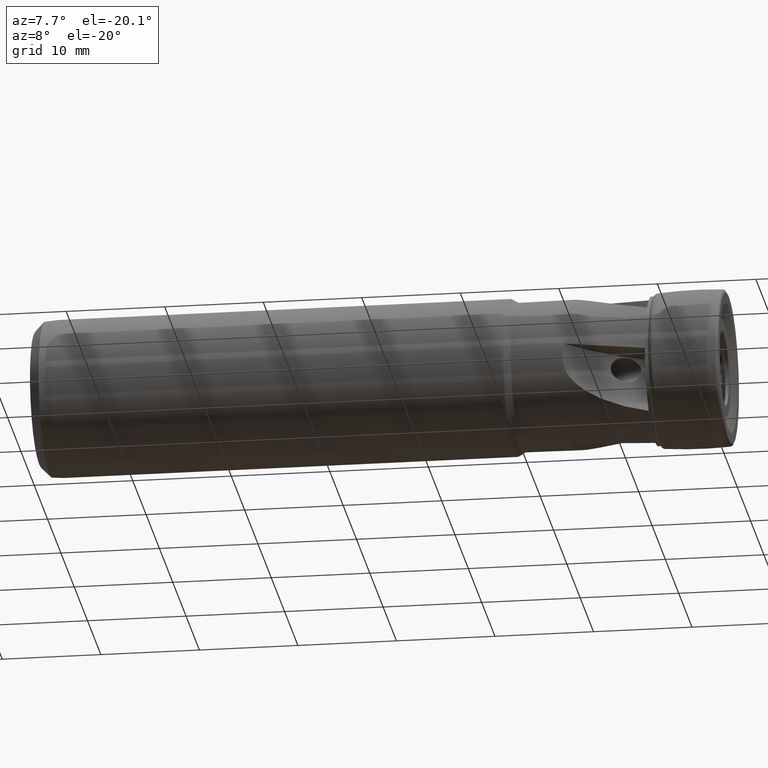
[diagram: clean part render]
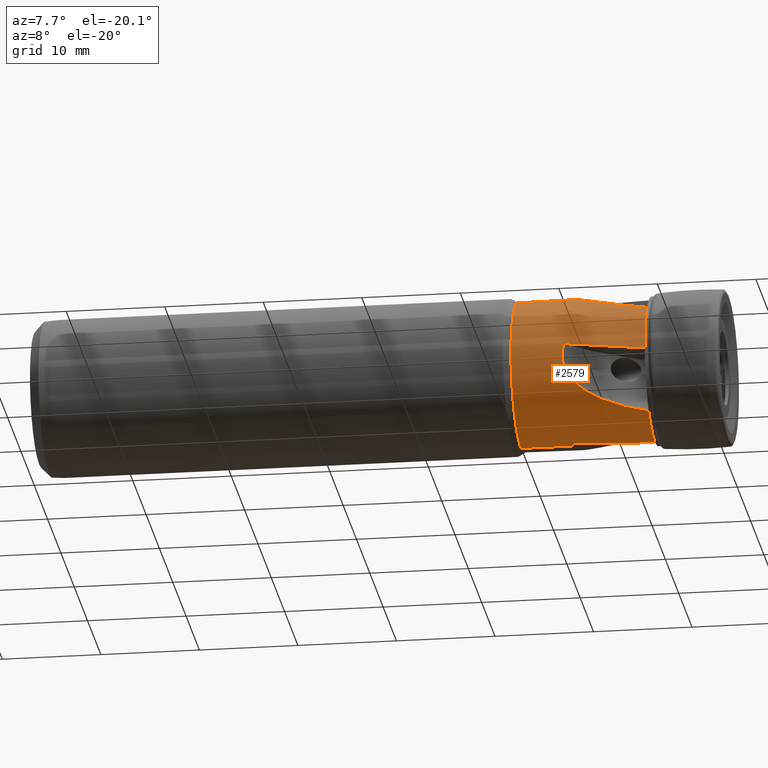
[diagram: same view with one face highlighted and labeled with its STEP entity id]
A machine part, auxiliary view. The second image highlights one B-rep face of the part: STEP entity #2579.
In plain terms, the highlighted cylindrical surface (partial cylindrical patch) has radius 7.5775 mm, axis along (1, -0, -0).
Its self-contained STEP definition (entity closure, byte-faithful):
#207 = EDGE_CURVE ( 'NONE', #1450, #2859, #1840, .T. ) ;
#208 = EDGE_CURVE ( 'NONE', #1452, #1450, #1598, .T. ) ;
#209 = EDGE_CURVE ( 'NONE', #1422, #1452, #1544, .T. ) ;
#210 = EDGE_CURVE ( 'NONE', #1420, #1422, #426, .T. ) ;
#211 = EDGE_CURVE ( 'NONE', #1423, #1420, #1713, .T. ) ;
#212 = EDGE_CURVE ( 'NONE', #1424, #1423, #1546, .T. ) ;
#213 = EDGE_CURVE ( 'NONE', #1449, #1424, #1548, .T. ) ;
#223 = EDGE_CURVE ( 'NONE', #1448, #1449, #2278, .T. ) ;
#232 = EDGE_CURVE ( 'NONE', #1445, #1453, #499, .T. ) ;
#233 = EDGE_CURVE ( 'NONE', #1448, #1445, #1716, .T. ) ;
#234 = EDGE_CURVE ( 'NONE', #3328, #1453, #1572, .T. ) ;
#235 = EDGE_CURVE ( 'NONE', #1421, #3328, #422, .T. ) ;
#236 = EDGE_CURVE ( 'NONE', #1421, #2859, #522, .T. ) ;
#422 =( BOUNDED_CURVE ( )  B_SPLINE_CURVE ( 3, ( #506, #517, #518, #520 ),
 .UNSPECIFIED., .F., .T. ) 
 B_SPLINE_CURVE_WITH_KNOTS ( ( 4, 4 ),
 ( 1.570796326794896800, 1.656319069123720200 ),
 .UNSPECIFIED. ) 
 CURVE ( )  GEOMETRIC_REPRESENTATION_ITEM ( )  RATIONAL_B_SPLINE_CURVE ( ( 1.000000000000000000, 0.9993905812491564700, 0.9993905812491564700, 1.000000000000000000 ) ) 
 REPRESENTATION_ITEM ( '' )  );
#426 =( BOUNDED_CURVE ( )  B_SPLINE_CURVE ( 3, ( #2169, #2199, #2200, #2201 ),
 .UNSPECIFIED., .F., .T. ) 
 B_SPLINE_CURVE_WITH_KNOTS ( ( 4, 4 ),
 ( 1.541824511685422300, 1.656319069123720200 ),
 .UNSPECIFIED. ) 
 CURVE ( )  GEOMETRIC_REPRESENTATION_ITEM ( )  RATIONAL_B_SPLINE_CURVE ( ( 1.000000000000000000, 0.9989078813375386100, 0.9989078813375386100, 1.000000000000000000 ) ) 
 REPRESENTATION_ITEM ( '' )  );
#431 = ORIENTED_EDGE ( 'NONE', *, *, #236, .T. ) ;
#499 = LINE ( 'NONE', #501, #1753 ) ;
#501 = CARTESIAN_POINT ( 'NONE',  ( 0.0000000000000000000, 0.0000000000000000000, -7.577499999999998800 ) ) ;
#506 = CARTESIAN_POINT ( 'NONE',  ( -9.088433621831505600, 0.0000000000000000000, -7.577499999999998800 ) ) ;
#507 = DIRECTION ( 'NONE',  ( 1.000000000000000000, -0.0000000000000000000, -0.0000000000000000000 ) ) ;
#508 = CARTESIAN_POINT ( 'NONE',  ( -15.24669052682192600, -0.6472588825685092800, -7.549805440468991200 ) ) ;
#509 = CARTESIAN_POINT ( 'NONE',  ( -15.29325299752517800, -0.4323239280214041800, -7.568232214457454500 ) ) ;
#510 = CARTESIAN_POINT ( 'NONE',  ( -20.59500345304526500, 0.0000000000000000000, 0.0000000000000000000 ) ) ;
#511 = DIRECTION ( 'NONE',  ( 1.000000000000000000, -0.0000000000000000000, -0.0000000000000000000 ) ) ;
#512 = DIRECTION ( 'NONE',  ( 0.0000000000000000000, 0.0000000000000000000, -1.000000000000000000 ) ) ;
#513 = CARTESIAN_POINT ( 'NONE',  ( -15.32790235060161900, -0.2165696146702172100, -7.577499999999998800 ) ) ;
#514 = CARTESIAN_POINT ( 'NONE',  ( -15.35066473433330700, 2.249131895844708300E-016, -7.577499999999998800 ) ) ;
#517 = CARTESIAN_POINT ( 'NONE',  ( -11.14431701290964000, -0.2160820516146453000, -7.577500000000000600 ) ) ;
#518 = CARTESIAN_POINT ( 'NONE',  ( -13.19832106315566000, -0.4319665765483273700, -7.568262850864465800 ) ) ;
#520 = CARTESIAN_POINT ( 'NONE',  ( -15.24669052682192600, -0.6472588825685092800, -7.549805440468991200 ) ) ;
#522 = LINE ( 'NONE', #525, #1697 ) ;
#525 = CARTESIAN_POINT ( 'NONE',  ( 0.0000000000000000000, 0.0000000000000000000, -7.577499999999998800 ) ) ;
#527 = DIRECTION ( 'NONE',  ( 1.000000000000000000, -0.0000000000000000000, -0.0000000000000000000 ) ) ;
#567 = CARTESIAN_POINT ( 'NONE',  ( -6.999999999999998200, -7.574320074235645400, -0.2195032187256865700 ) ) ;
#638 = CARTESIAN_POINT ( 'NONE',  ( -20.59500345304526500, 0.0000000000000000000, 7.577499999999997900 ) ) ;
#656 = CARTESIAN_POINT ( 'NONE',  ( -9.088433621831505600, 0.0000000000000000000, -7.577499999999998800 ) ) ;
#658 = CARTESIAN_POINT ( 'NONE',  ( -15.24669052682192600, -7.549805440468991200, 0.6472588825685357000 ) ) ;
#660 = CARTESIAN_POINT ( 'NONE',  ( -6.999999999999998200, -5.930818102993552700, 4.716344228234826900 ) ) ;
#662 = CARTESIAN_POINT ( 'NONE',  ( -15.33333440140710600, -1.354651038379739900, 7.455429351433569000 ) ) ;
#676 = CARTESIAN_POINT ( 'NONE',  ( -20.59500345304526500, 9.538467756858941400E-016, -7.577499999999997900 ) ) ;
#679 = CARTESIAN_POINT ( 'NONE',  ( -15.35066473433331200, 9.296650137347176800E-016, 7.577499999999998800 ) ) ;
#680 = CARTESIAN_POINT ( 'NONE',  ( -6.999999999999998200, -4.716344228234801200, -5.930818102993574000 ) ) ;
#682 = CARTESIAN_POINT ( 'NONE',  ( -15.33333440140704700, -7.455429351433513900, -1.354651038379772500 ) ) ;
#683 = CARTESIAN_POINT ( 'NONE',  ( -15.35066473433330700, 2.249131895844708300E-016, -7.577499999999998800 ) ) ;
#1420 = VERTEX_POINT ( 'NONE', #567 ) ;
#1421 = VERTEX_POINT ( 'NONE', #656 ) ;
#1422 = VERTEX_POINT ( 'NONE', #658 ) ;
#1423 = VERTEX_POINT ( 'NONE', #660 ) ;
#1424 = VERTEX_POINT ( 'NONE', #662 ) ;
#1445 = VERTEX_POINT ( 'NONE', #676 ) ;
#1448 = VERTEX_POINT ( 'NONE', #638 ) ;
#1449 = VERTEX_POINT ( 'NONE', #679 ) ;
#1450 = VERTEX_POINT ( 'NONE', #680 ) ;
#1452 = VERTEX_POINT ( 'NONE', #682 ) ;
#1453 = VERTEX_POINT ( 'NONE', #683 ) ;
#1456 = EDGE_LOOP ( 'NONE', ( #3710, #2778, #2758, #3394, #2644, #431, #3395, #3216, #3707, #3228, #3230, #2762, #3214 ) ) ;
#1544 = B_SPLINE_CURVE_WITH_KNOTS ( 'NONE', 3,
 ( #2193, #2194, #2195, #2196, #2197, #2198 ),
 .UNSPECIFIED., .F., .F.,
 ( 4, 2, 4 ),
 ( 4.059855802725617500E-017, 0.001004227971323009300, 0.002008455942645977900 ),
 .UNSPECIFIED. ) ;
#1546 = B_SPLINE_CURVE_WITH_KNOTS ( 'NONE', 3,
 ( #2208, #2203, #2204, #2209, #2210, #2211, #2212, #2213, #2214, #2215, #2216, #2217, #2218, #2219, #2220, #2221 ),
 .UNSPECIFIED., .F., .F.,
 ( 4, 2, 2, 2, 2, 2, 2, 4 ),
 ( 0.0008322576094183214500, 0.001487213761063959100, 0.002142169912709596900, 0.003452082216000873900, 0.004761994519292151200, 0.006071906822583428600, 0.008691731429165985200, 0.01131155603574854300 ),
 .UNSPECIFIED. ) ;
#1548 = B_SPLINE_CURVE_WITH_KNOTS ( 'NONE', 3,
 ( #2223, #2202, #2224, #2225, #2226, #2227 ),
 .UNSPECIFIED., .F., .F.,
 ( 4, 2, 4 ),
 ( 0.0006530204088868937800, 0.001330738175766359500, 0.002008455942645825200 ),
 .UNSPECIFIED. ) ;
#1572 = B_SPLINE_CURVE_WITH_KNOTS ( 'NONE', 3,
 ( #508, #509, #513, #514 ),
 .UNSPECIFIED., .F., .F.,
 ( 4, 4 ),
 ( 3.995060656255393500E-017, 0.0006530204088868194000 ),
 .UNSPECIFIED. ) ;
#1598 = B_SPLINE_CURVE_WITH_KNOTS ( 'NONE', 3,
 ( #2178, #2173, #2174, #2179, #2180, #2181, #2182, #2183, #2184, #2185, #2186, #2187, #2188, #2189, #2190, #2191 ),
 .UNSPECIFIED., .F., .F.,
 ( 4, 2, 2, 2, 2, 2, 2, 4 ),
 ( 0.0008322576094182950000, 0.001487213761063930400, 0.002142169912709566100, 0.003452082216000836600, 0.004761994519292107000, 0.006071906822583376600, 0.008691731429165919200, 0.01131155603574846000 ),
 .UNSPECIFIED. ) ;
#1659 = VECTOR ( 'NONE', #2282, 1000.000000000000000 ) ;
#1697 = VECTOR ( 'NONE', #527, 1000.000000000000000 ) ;
#1713 = CIRCLE ( 'NONE', #1822, 7.577500000000000600 ) ;
#1716 = CIRCLE ( 'NONE', #1824, 7.577499999999997900 ) ;
#1724 = AXIS2_PLACEMENT_3D ( 'NONE', #2175, #2176, #2177 ) ;
#1736 = AXIS2_PLACEMENT_3D ( 'NONE', #3590, #3587, #3592 ) ;
#1753 = VECTOR ( 'NONE', #507, 1000.000000000000000 ) ;
#1822 = AXIS2_PLACEMENT_3D ( 'NONE', #2205, #2206, #2207 ) ;
#1824 = AXIS2_PLACEMENT_3D ( 'NONE', #510, #511, #512 ) ;
#1840 = CIRCLE ( 'NONE', #1724, 7.577500000000000600 ) ;
#1887 = CARTESIAN_POINT ( 'NONE',  ( -7.000000000000000900, 0.0000000000000000000, -7.577500000000000600 ) ) ;
#2135 = CARTESIAN_POINT ( 'NONE',  ( -15.24669052682192600, -0.6472588825685092800, -7.549805440468991200 ) ) ;
#2169 = CARTESIAN_POINT ( 'NONE',  ( -6.999999999999998200, -7.574320074235645400, -0.2195032187256865700 ) ) ;
#2173 = CARTESIAN_POINT ( 'NONE',  ( -15.30418429665280500, -7.416224909019989700, -1.570415794317270100 ) ) ;
#2174 = CARTESIAN_POINT ( 'NONE',  ( -15.24740651854873600, -7.369167136213939700, -1.776522735733879500 ) ) ;
#2175 = CARTESIAN_POINT ( 'NONE',  ( -7.000000000000000900, 0.0000000000000000000, 0.0000000000000000000 ) ) ;
#2176 = DIRECTION ( 'NONE',  ( 1.000000000000000000, -0.0000000000000000000, -0.0000000000000000000 ) ) ;
#2177 = DIRECTION ( 'NONE',  ( 0.0000000000000000000, 0.0000000000000000000, -1.000000000000000000 ) ) ;
#2178 = CARTESIAN_POINT ( 'NONE',  ( -15.33333440140704700, -7.455429351433513900, -1.354651038379772500 ) ) ;
#2179 = CARTESIAN_POINT ( 'NONE',  ( -15.08873138883053700, -7.262158880708143200, -2.172948619591998500 ) ) ;
#2180 = CARTESIAN_POINT ( 'NONE',  ( -14.98759963922857900, -7.202878269635745800, -2.360366152332080700 ) ) ;
#2181 = CARTESIAN_POINT ( 'NONE',  ( -14.64241031893376100, -7.017076162215863300, -2.883792354647799700 ) ) ;
#2182 = CARTESIAN_POINT ( 'NONE',  ( -14.35087963573838200, -6.879430120447591600, -3.190938933976179600 ) ) ;
#2183 = CARTESIAN_POINT ( 'NONE',  ( -13.72105148651536800, -6.605393670156154000, -3.725241539114962900 ) ) ;
#2184 = CARTESIAN_POINT ( 'NONE',  ( -13.37940297012835200, -6.467289669227922000, -3.956559708159000300 ) ) ;
#2185 = CARTESIAN_POINT ( 'NONE',  ( -12.65864975864529100, -6.194300913551593600, -4.371594283817222100 ) ) ;
#2186 = CARTESIAN_POINT ( 'NONE',  ( -12.28415587280566100, -6.061254586552728100, -4.552101152869305200 ) ) ;
#2187 = CARTESIAN_POINT ( 'NONE',  ( -11.13865844798483500, -5.679237740916682300, -5.033137014625148200 ) ) ;
#2188 = CARTESIAN_POINT ( 'NONE',  ( -10.34120703456994100, -5.445501580167202400, -5.276962829780944600 ) ) ;
#2189 = CARTESIAN_POINT ( 'NONE',  ( -8.696155689995743300, -5.033486541154712100, -5.671317078642983000 ) ) ;
#2190 = CARTESIAN_POINT ( 'NONE',  ( -7.853674738177675300, -4.856785448051440700, -5.819135511319730700 ) ) ;
#2191 = CARTESIAN_POINT ( 'NONE',  ( -6.999999999999998200, -4.716344228234801200, -5.930818102993574000 ) ) ;
#2193 = CARTESIAN_POINT ( 'NONE',  ( -15.24669052682192600, -7.549805440468991200, 0.6472588825685357000 ) ) ;
#2194 = CARTESIAN_POINT ( 'NONE',  ( -15.31829523451337100, -7.578142505602721200, 0.3167275692530657200 ) ) ;
#2195 = CARTESIAN_POINT ( 'NONE',  ( -15.36188781124496900, -7.584875049033675200, -0.01572916052514809100 ) ) ;
#2196 = CARTESIAN_POINT ( 'NONE',  ( -15.39206875165628600, -7.553936982167289900, -0.6845531282447919800 ) ) ;
#2197 = CARTESIAN_POINT ( 'NONE',  ( -15.37808465312702600, -7.515614681172043500, -1.023416306226983200 ) ) ;
#2198 = CARTESIAN_POINT ( 'NONE',  ( -15.33333440140704700, -7.455429351433513900, -1.354651038379772500 ) ) ;
#2199 = CARTESIAN_POINT ( 'NONE',  ( -9.751847380404086600, -7.582701961205290600, 0.06972759575951662000 ) ) ;
#2200 = CARTESIAN_POINT ( 'NONE',  ( -12.50374962647828700, -7.574521482563032900, 0.3589641768590058300 ) ) ;
#2201 = CARTESIAN_POINT ( 'NONE',  ( -15.24669052682192600, -7.549805440468991200, 0.6472588825685357000 ) ) ;
#2202 = CARTESIAN_POINT ( 'NONE',  ( -15.37428799581420500, -0.2247603193266936900, 7.577499999999998800 ) ) ;
#2203 = CARTESIAN_POINT ( 'NONE',  ( -15.30418429665282600, -1.570415794317215700, 7.416224909020004800 ) ) ;
#2204 = CARTESIAN_POINT ( 'NONE',  ( -15.24740651854875400, -1.776522735733826000, 7.369167136213953000 ) ) ;
#2205 = CARTESIAN_POINT ( 'NONE',  ( -7.000000000000000900, 0.0000000000000000000, 0.0000000000000000000 ) ) ;
#2206 = DIRECTION ( 'NONE',  ( 1.000000000000000000, -0.0000000000000000000, -0.0000000000000000000 ) ) ;
#2207 = DIRECTION ( 'NONE',  ( 0.0000000000000000000, 0.0000000000000000000, -1.000000000000000000 ) ) ;
#2208 = CARTESIAN_POINT ( 'NONE',  ( -15.33333440140710600, -1.354651038379739900, 7.455429351433569000 ) ) ;
#2209 = CARTESIAN_POINT ( 'NONE',  ( -15.08873138883056200, -2.172948619591949600, 7.262158880708160100 ) ) ;
#2210 = CARTESIAN_POINT ( 'NONE',  ( -14.98759963922859800, -2.360366152332033200, 7.202878269635761800 ) ) ;
#2211 = CARTESIAN_POINT ( 'NONE',  ( -14.64241031893378200, -2.883792354647757500, 7.017076162215881000 ) ) ;
#2212 = CARTESIAN_POINT ( 'NONE',  ( -14.35087963573839400, -3.190938933976136900, 6.879430120447611200 ) ) ;
#2213 = CARTESIAN_POINT ( 'NONE',  ( -13.72105148651538700, -3.725241539114925600, 6.605393670156177100 ) ) ;
#2214 = CARTESIAN_POINT ( 'NONE',  ( -13.37940297012836800, -3.956559708158967400, 6.467289669227942500 ) ) ;
#2215 = CARTESIAN_POINT ( 'NONE',  ( -12.65864975864529800, -4.371594283817190200, 6.194300913551607800 ) ) ;
#2216 = CARTESIAN_POINT ( 'NONE',  ( -12.28415587280567700, -4.552101152869278500, 6.061254586552746700 ) ) ;
#2217 = CARTESIAN_POINT ( 'NONE',  ( -11.13865844798485000, -5.033137014625125100, 5.679237740916702700 ) ) ;
#2218 = CARTESIAN_POINT ( 'NONE',  ( -10.34120703456995600, -5.276962829780922300, 5.445501580167224600 ) ) ;
#2219 = CARTESIAN_POINT ( 'NONE',  ( -8.696155689995748600, -5.671317078642962500, 5.033486541154731600 ) ) ;
#2220 = CARTESIAN_POINT ( 'NONE',  ( -7.853674738177677000, -5.819135511319716500, 4.856785448051457600 ) ) ;
#2221 = CARTESIAN_POINT ( 'NONE',  ( -6.999999999999998200, -5.930818102993552700, 4.716344228234826900 ) ) ;
#2223 = CARTESIAN_POINT ( 'NONE',  ( -15.35066473433331200, 9.296650137347176800E-016, 7.577499999999998800 ) ) ;
#2224 = CARTESIAN_POINT ( 'NONE',  ( -15.38511802449076200, -0.4503980382160495700, 7.567522191860283500 ) ) ;
#2225 = CARTESIAN_POINT ( 'NONE',  ( -15.37984515053955000, -0.9035261771321729800, 7.526877902846814900 ) ) ;
#2226 = CARTESIAN_POINT ( 'NONE',  ( -15.36353475583754300, -1.131112489964476700, 7.496046291445235700 ) ) ;
#2227 = CARTESIAN_POINT ( 'NONE',  ( -15.33333440140710600, -1.354651038379739900, 7.455429351433569000 ) ) ;
#2266 = CARTESIAN_POINT ( 'NONE',  ( 0.0000000000000000000, 9.279761120539067100E-016, 7.577499999999998800 ) ) ;
#2278 = LINE ( 'NONE', #2266, #1659 ) ;
#2282 = DIRECTION ( 'NONE',  ( 1.000000000000000000, -0.0000000000000000000, -0.0000000000000000000 ) ) ;
#2579 = ADVANCED_FACE ( 'NONE', ( #3589 ), #3588, .T. ) ;
#2644 = ORIENTED_EDGE ( 'NONE', *, *, #235, .F. ) ;
#2758 = ORIENTED_EDGE ( 'NONE', *, *, #232, .T. ) ;
#2762 = ORIENTED_EDGE ( 'NONE', *, *, #212, .F. ) ;
#2778 = ORIENTED_EDGE ( 'NONE', *, *, #233, .T. ) ;
#2859 = VERTEX_POINT ( 'NONE', #1887 ) ;
#3214 = ORIENTED_EDGE ( 'NONE', *, *, #213, .F. ) ;
#3216 = ORIENTED_EDGE ( 'NONE', *, *, #208, .F. ) ;
#3228 = ORIENTED_EDGE ( 'NONE', *, *, #210, .F. ) ;
#3230 = ORIENTED_EDGE ( 'NONE', *, *, #211, .F. ) ;
#3328 = VERTEX_POINT ( 'NONE', #2135 ) ;
#3394 = ORIENTED_EDGE ( 'NONE', *, *, #234, .F. ) ;
#3395 = ORIENTED_EDGE ( 'NONE', *, *, #207, .F. ) ;
#3587 = DIRECTION ( 'NONE',  ( 1.000000000000000000, -0.0000000000000000000, -0.0000000000000000000 ) ) ;
#3588 = CYLINDRICAL_SURFACE ( 'NONE', #1736, 7.577499999999998800 ) ;
#3589 = FACE_OUTER_BOUND ( 'NONE', #1456, .T. ) ;
#3590 = CARTESIAN_POINT ( 'NONE',  ( 0.0000000000000000000, 0.0000000000000000000, 0.0000000000000000000 ) ) ;
#3592 = DIRECTION ( 'NONE',  ( 0.0000000000000000000, 0.0000000000000000000, -1.000000000000000000 ) ) ;
#3707 = ORIENTED_EDGE ( 'NONE', *, *, #209, .F. ) ;
#3710 = ORIENTED_EDGE ( 'NONE', *, *, #223, .F. ) ;